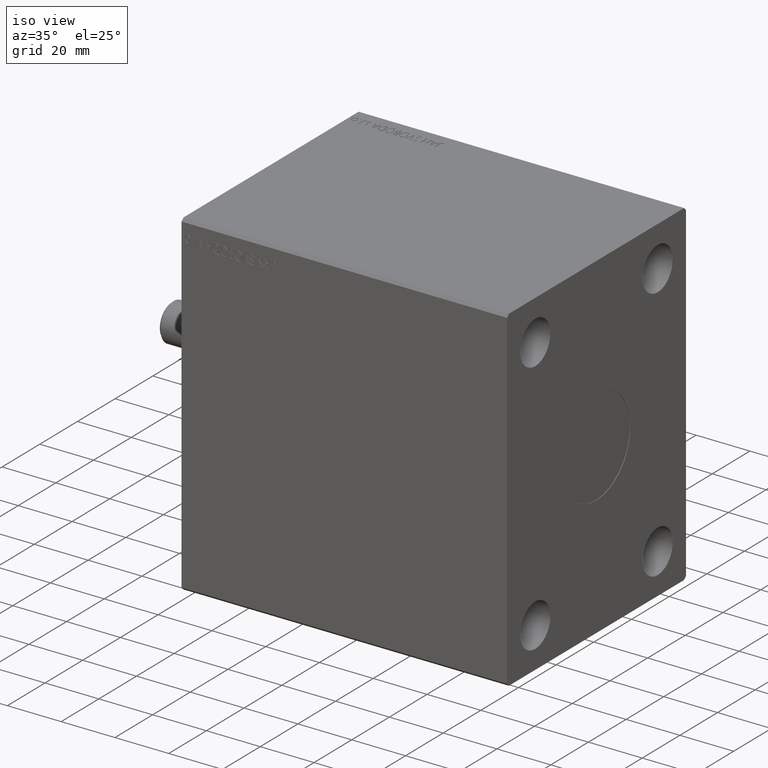
[diagram: clean part render]
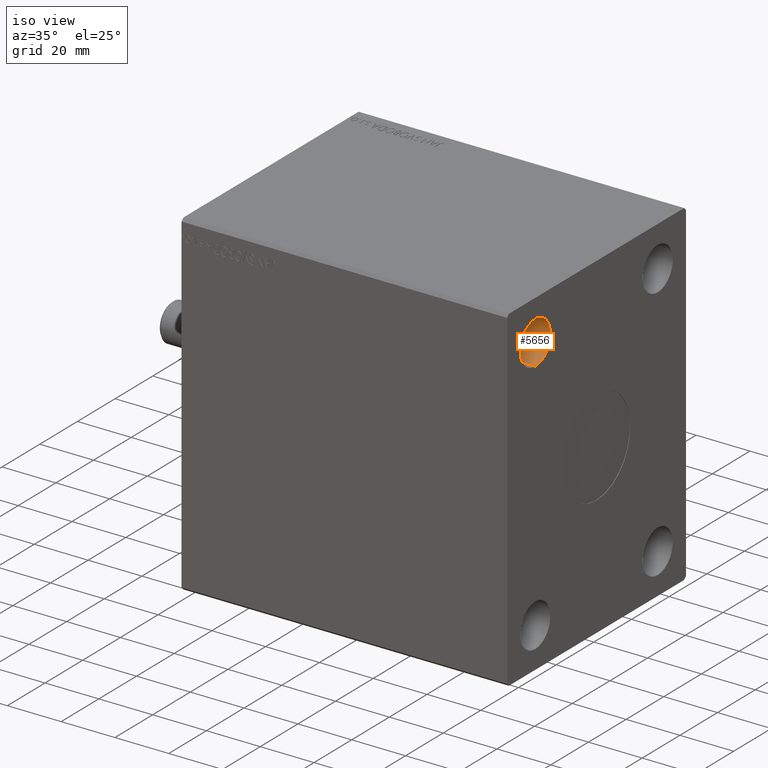
[diagram: same view with one face highlighted and labeled with its STEP entity id]
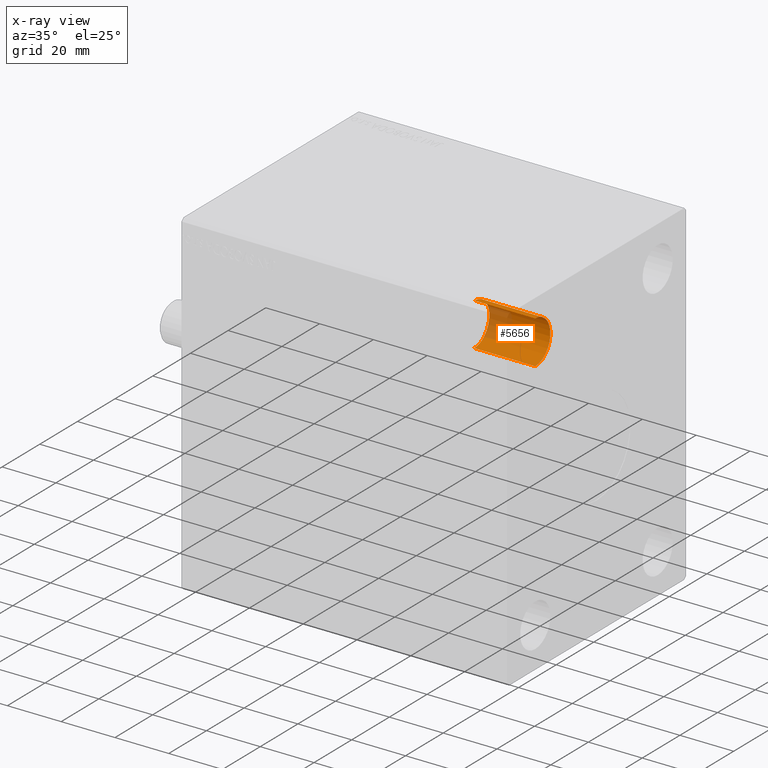
[diagram: x-ray of the same camera — body ghosted, the highlighted face saturated]
A machine part, iso view. The second image highlights one B-rep face of the part: STEP entity #5656.
The next image is the same camera in x-ray: the body ghosted, the highlighted face saturated — about 23% of this face is hidden behind the body in this view.
In plain terms, the highlighted cylindrical surface (edge-blend (fillet) strip) has radius 8 mm, axis along (1, 0, 0).
Its self-contained STEP definition (entity closure, byte-faithful):
#10 = VERTEX_POINT ( 'NONE', #28633 ) ;
#2842 = ORIENTED_EDGE ( 'NONE', *, *, #9203, .F. ) ;
#2963 = LINE ( 'NONE', #16681, #33116 ) ;
#3041 = DIRECTION ( 'NONE',  ( 1.000000000000000000, -0.000000000000000000, -0.000000000000000000 ) ) ;
#3903 = EDGE_LOOP ( 'NONE', ( #2842, #38860, #20881, #39512 ) ) ;
#4005 = CARTESIAN_POINT ( 'NONE',  ( 121.0000000000000000, -32.50000000000000000, 39.50000000000000711 ) ) ;
#5554 = DIRECTION ( 'NONE',  ( 0.000000000000000000, 0.000000000000000000, -1.000000000000000000 ) ) ;
#5656 = ADVANCED_FACE ( 'NONE', ( #36254 ), #8915, .F. ) ;
#8328 = EDGE_CURVE ( 'NONE', #9625, #19028, #28116, .T. ) ;
#8915 = CYLINDRICAL_SURFACE ( 'NONE', #24467, 7.999999999999992895 ) ;
#9203 = EDGE_CURVE ( 'NONE', #10, #19028, #9250, .T. ) ;
#9250 = LINE ( 'NONE', #11949, #12464 ) ;
#9390 = CARTESIAN_POINT ( 'NONE',  ( 98.32999999999999829, -32.50000000000000000, 39.50000000000000711 ) ) ;
#9621 = AXIS2_PLACEMENT_3D ( 'NONE', #23277, #3041, #23717 ) ;
#9625 = VERTEX_POINT ( 'NONE', #4005 ) ;
#11637 = AXIS2_PLACEMENT_3D ( 'NONE', #38625, #11717, #24755 ) ;
#11717 = DIRECTION ( 'NONE',  ( 1.000000000000000000, -0.000000000000000000, -0.000000000000000000 ) ) ;
#11949 = CARTESIAN_POINT ( 'NONE',  ( 121.0000000000000000, -32.50000000000000000, 55.49999999999999289 ) ) ;
#12464 = VECTOR ( 'NONE', #40170, 1000.000000000000000 ) ;
#15987 = CARTESIAN_POINT ( 'NONE',  ( 121.0000000000000000, -32.50000000000000000, 55.49999999999999289 ) ) ;
#16681 = CARTESIAN_POINT ( 'NONE',  ( 121.0000000000000000, -32.50000000000000000, 39.50000000000000711 ) ) ;
#18379 = DIRECTION ( 'NONE',  ( 1.000000000000000000, -0.000000000000000000, -0.000000000000000000 ) ) ;
#19028 = VERTEX_POINT ( 'NONE', #15987 ) ;
#20881 = ORIENTED_EDGE ( 'NONE', *, *, #34082, .T. ) ;
#23247 = CIRCLE ( 'NONE', #9621, 7.999999999999992895 ) ;
#23277 = CARTESIAN_POINT ( 'NONE',  ( 98.32999999999999829, -32.50000000000000000, 47.50000000000000000 ) ) ;
#23717 = DIRECTION ( 'NONE',  ( 0.000000000000000000, 0.000000000000000000, -1.000000000000000000 ) ) ;
#24467 = AXIS2_PLACEMENT_3D ( 'NONE', #36034, #18379, #5554 ) ;
#24755 = DIRECTION ( 'NONE',  ( 0.000000000000000000, 0.000000000000000000, -1.000000000000000000 ) ) ;
#28116 = CIRCLE ( 'NONE', #11637, 7.999999999999992895 ) ;
#28317 = VERTEX_POINT ( 'NONE', #9390 ) ;
#28633 = CARTESIAN_POINT ( 'NONE',  ( 98.32999999999999829, -32.50000000000000000, 55.49999999999999289 ) ) ;
#33116 = VECTOR ( 'NONE', #40872, 1000.000000000000000 ) ;
#34082 = EDGE_CURVE ( 'NONE', #28317, #9625, #2963, .T. ) ;
#36034 = CARTESIAN_POINT ( 'NONE',  ( 121.0000000000000000, -32.50000000000000000, 47.50000000000000000 ) ) ;
#36254 = FACE_OUTER_BOUND ( 'NONE', #3903, .T. ) ;
#38625 = CARTESIAN_POINT ( 'NONE',  ( 121.0000000000000000, -32.50000000000000000, 47.50000000000000000 ) ) ;
#38860 = ORIENTED_EDGE ( 'NONE', *, *, #42331, .F. ) ;
#39512 = ORIENTED_EDGE ( 'NONE', *, *, #8328, .T. ) ;
#40170 = DIRECTION ( 'NONE',  ( 1.000000000000000000, -0.000000000000000000, -0.000000000000000000 ) ) ;
#40872 = DIRECTION ( 'NONE',  ( 1.000000000000000000, -0.000000000000000000, -0.000000000000000000 ) ) ;
#42331 = EDGE_CURVE ( 'NONE', #28317, #10, #23247, .T. ) ;